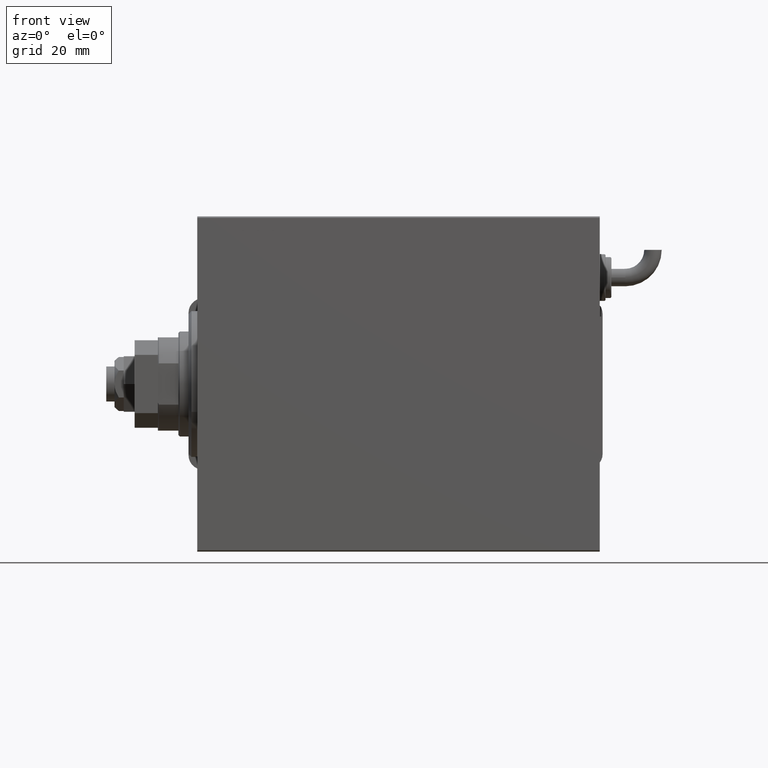
[diagram: clean part render]
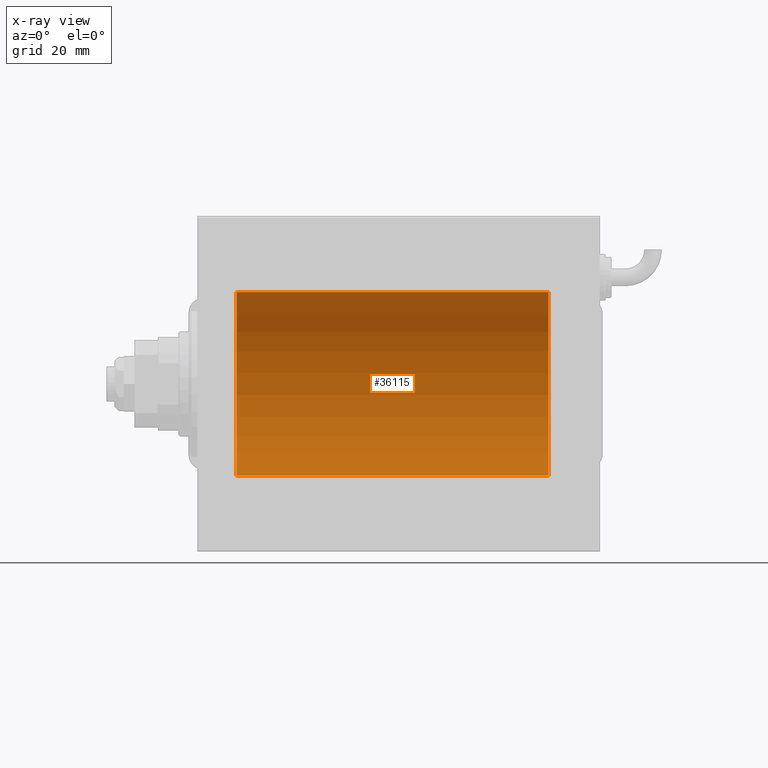
[diagram: x-ray — body ghosted, one internal face saturated and labeled with its STEP entity id]
A machine part, front view, then the same camera in x-ray: the body is ghosted and one INTERNAL B-rep face — a face not visible from any outside direction — is saturated and labeled: STEP entity #36115.
In plain terms, the highlighted cylindrical surface (partial cylindrical patch) has radius 31.5 mm, axis along (-1, -0, -0).
Its self-contained STEP definition (entity closure, byte-faithful):
#1414 = CYLINDRICAL_SURFACE ( 'NONE', #50409, 31.50000000000000000 ) ;
#6106 = VECTOR ( 'NONE', #50935, 1000.000000000000000 ) ;
#7120 = EDGE_CURVE ( 'NONE', #18649, #45469, #8552, .T. ) ;
#8552 = CIRCLE ( 'NONE', #16238, 31.50000000000000000 ) ;
#9537 = DIRECTION ( 'NONE',  ( -1.000000000000000000, -0.000000000000000000, -0.000000000000000000 ) ) ;
#11532 = EDGE_CURVE ( 'NONE', #20292, #51726, #53650, .T. ) ;
#14806 = CARTESIAN_POINT ( 'NONE',  ( 120.5000000000000000, 3.857637417314162689E-15, -31.50000000000000000 ) ) ;
#16238 = AXIS2_PLACEMENT_3D ( 'NONE', #49272, #17081, #39663 ) ;
#16635 = CARTESIAN_POINT ( 'NONE',  ( 13.49999999999999822, 3.857637417314162689E-15, -31.50000000000000000 ) ) ;
#17081 = DIRECTION ( 'NONE',  ( -1.000000000000000000, 0.000000000000000000, 0.000000000000000000 ) ) ;
#18649 = VERTEX_POINT ( 'NONE', #34088 ) ;
#20292 = VERTEX_POINT ( 'NONE', #37567 ) ;
#22668 = LINE ( 'NONE', #31991, #6106 ) ;
#23840 = LINE ( 'NONE', #14806, #44827 ) ;
#25339 = DIRECTION ( 'NONE',  ( 0.000000000000000000, 0.000000000000000000, 1.000000000000000000 ) ) ;
#28199 = FACE_OUTER_BOUND ( 'NONE', #34017, .T. ) ;
#30599 = EDGE_CURVE ( 'NONE', #18649, #20292, #22668, .T. ) ;
#31991 = CARTESIAN_POINT ( 'NONE',  ( 120.5000000000000000, 0.000000000000000000, 31.50000000000000000 ) ) ;
#32904 = ORIENTED_EDGE ( 'NONE', *, *, #7120, .F. ) ;
#34017 = EDGE_LOOP ( 'NONE', ( #48129, #32904, #47265, #47263 ) ) ;
#34074 = CARTESIAN_POINT ( 'NONE',  ( 13.49999999999999822, 0.000000000000000000, 0.000000000000000000 ) ) ;
#34088 = CARTESIAN_POINT ( 'NONE',  ( 120.5000000000000000, 0.000000000000000000, 31.50000000000000000 ) ) ;
#36115 = ADVANCED_FACE ( 'NONE', ( #28199 ), #1414, .F. ) ;
#37087 = DIRECTION ( 'NONE',  ( -1.000000000000000000, -0.000000000000000000, -0.000000000000000000 ) ) ;
#37567 = CARTESIAN_POINT ( 'NONE',  ( 13.49999999999999822, 0.000000000000000000, 31.50000000000000000 ) ) ;
#39663 = DIRECTION ( 'NONE',  ( 0.000000000000000000, 0.000000000000000000, 1.000000000000000000 ) ) ;
#40622 = EDGE_CURVE ( 'NONE', #45469, #51726, #23840, .T. ) ;
#43690 = CARTESIAN_POINT ( 'NONE',  ( 120.5000000000000000, 3.857637417314162689E-15, -31.50000000000000000 ) ) ;
#44827 = VECTOR ( 'NONE', #37087, 1000.000000000000000 ) ;
#45469 = VERTEX_POINT ( 'NONE', #43690 ) ;
#45955 = AXIS2_PLACEMENT_3D ( 'NONE', #34074, #47912, #25339 ) ;
#46553 = DIRECTION ( 'NONE',  ( 0.000000000000000000, 0.000000000000000000, 1.000000000000000000 ) ) ;
#47263 = ORIENTED_EDGE ( 'NONE', *, *, #11532, .T. ) ;
#47265 = ORIENTED_EDGE ( 'NONE', *, *, #30599, .T. ) ;
#47912 = DIRECTION ( 'NONE',  ( -1.000000000000000000, 0.000000000000000000, 0.000000000000000000 ) ) ;
#48129 = ORIENTED_EDGE ( 'NONE', *, *, #40622, .F. ) ;
#49272 = CARTESIAN_POINT ( 'NONE',  ( 120.5000000000000000, 0.000000000000000000, 0.000000000000000000 ) ) ;
#50409 = AXIS2_PLACEMENT_3D ( 'NONE', #55594, #9537, #46553 ) ;
#50935 = DIRECTION ( 'NONE',  ( -1.000000000000000000, -0.000000000000000000, -0.000000000000000000 ) ) ;
#51726 = VERTEX_POINT ( 'NONE', #16635 ) ;
#53650 = CIRCLE ( 'NONE', #45955, 31.50000000000000000 ) ;
#55594 = CARTESIAN_POINT ( 'NONE',  ( 120.5000000000000000, 0.000000000000000000, 0.000000000000000000 ) ) ;